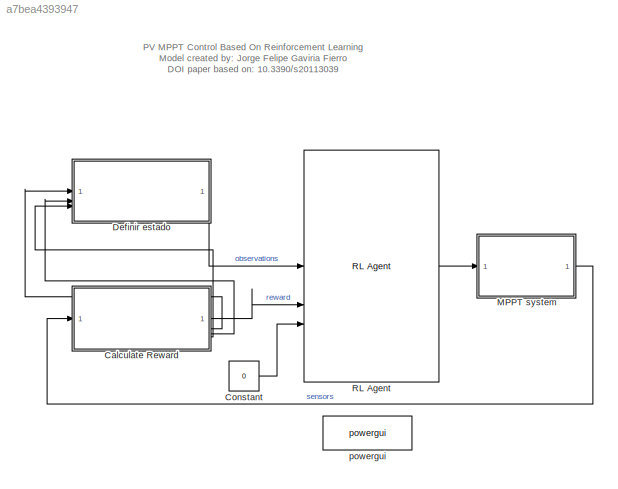
MODEL slx_a7bea4393947
KIND model
CONFIG AbsTol = auto
CONFIG EnableMultiTasking = off
CONFIG FixedStep = Ts
CONFIG MaxStep = auto
CONFIG MinStep = auto
CONFIG RelTol = 1e-4
CONFIG SampleTimeConstraint = Unconstrained
CONFIG SolverName = ode23tb
CONFIG StartTime = 0.0
CONFIG StopTime = 0.5
WORKSPACE source: mxarray member
WORKSPACE Ir1 = 200
WORKSPACE Ir2 = 1000
WORKSPACE Ir3 = 1000
WORKSPACE Sig: Simulink.Signal (value not decoded)
WORKSPACE T1 = 35
WORKSPACE initialDuty = 0.2
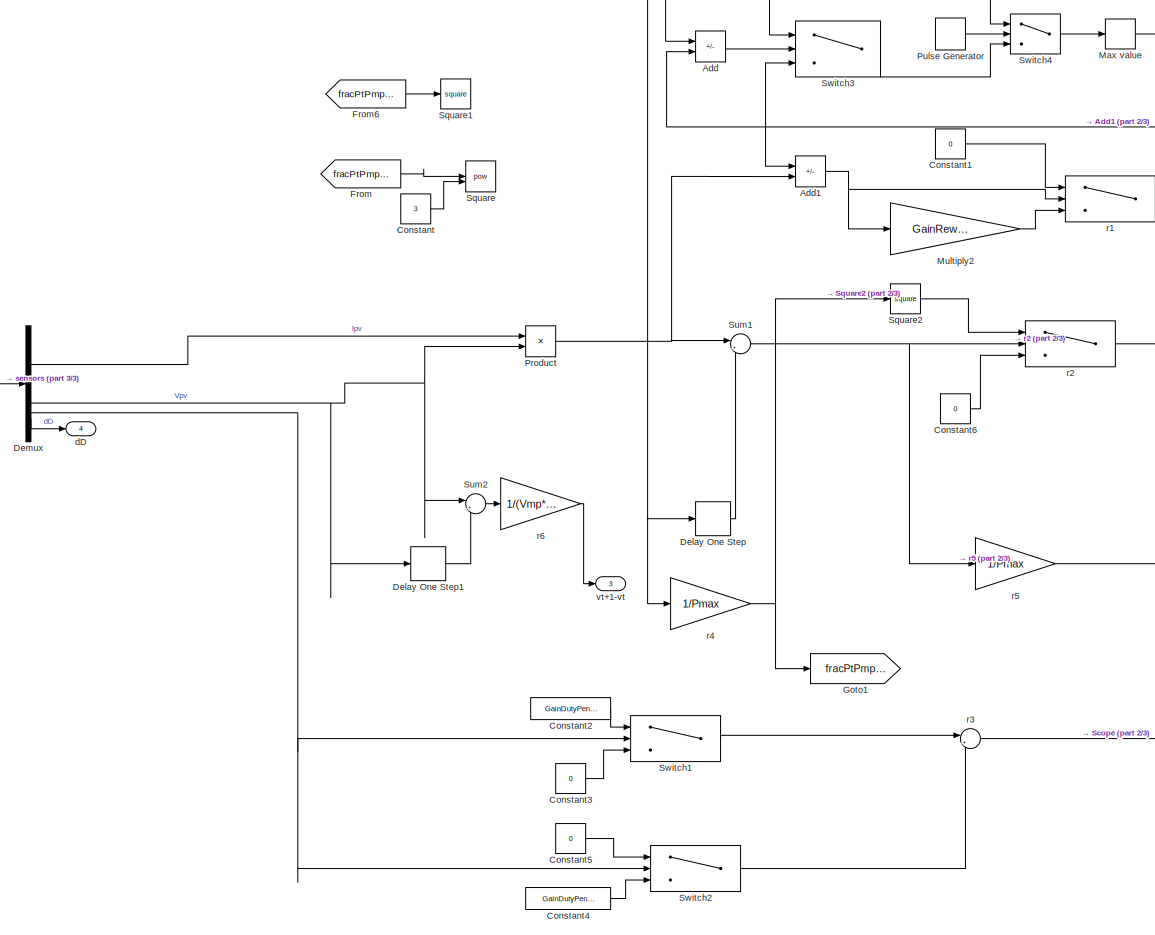
[diagram: Calculate Reward - part 1/3, center side, full height]
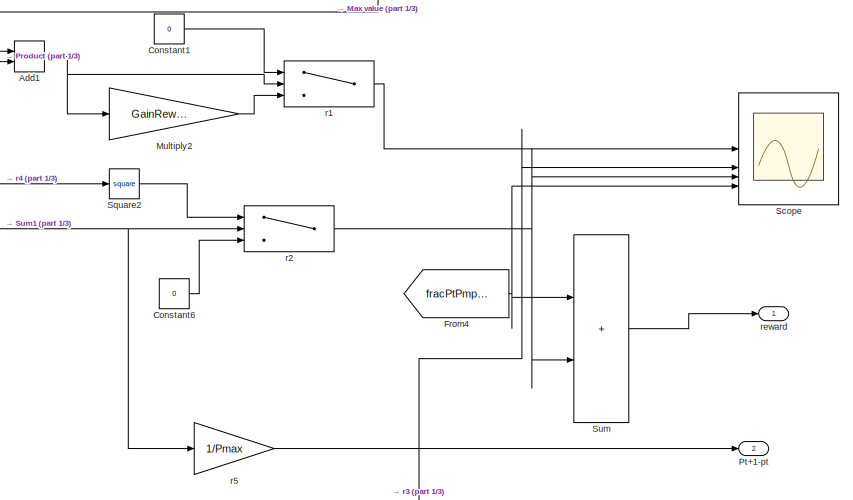
[diagram: Calculate Reward - part 2/3, middle right region]
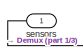
[diagram: Calculate Reward - part 3/3, middle left region]
BLOCK [SubSystem] Calculate Reward
BLOCK [Sum] Calculate Reward/Add
  Commented = on
  IconShape = rectangular
  Inputs = +-
BLOCK [Sum] Calculate Reward/Add1
  Commented = on
  IconShape = rectangular
  Inputs = -+
BLOCK [Constant] Calculate Reward/Constant
  Commented = on
  Value = 3
BLOCK [Constant] Calculate Reward/Constant1
  Commented = on
  Value = 0
BLOCK [Constant] Calculate Reward/Constant2
  Commented = on
  Value = GainDutyPenalty
BLOCK [Constant] Calculate Reward/Constant3
  Commented = on
  Value = 0
BLOCK [Constant] Calculate Reward/Constant4
  Commented = on
  Value = GainDutyPenalty
BLOCK [Constant] Calculate Reward/Constant5
  Commented = on
  Value = 0
BLOCK [Constant] Calculate Reward/Constant6
  Value = 0
BLOCK [Delay] Calculate Reward/Delay One Step
  DelayLength = 1
  InputPortMap = u0
  SampleTime = Ts
BLOCK [Delay] Calculate Reward/Delay One Step1
  DelayLength = 1
  InputPortMap = u0
  SampleTime = Ts
BLOCK [Demux] Calculate Reward/Demux
BLOCK [From] Calculate Reward/From
  Commented = on
  GotoTag = fracPtPmpptStc
BLOCK [From] Calculate Reward/From4
  GotoTag = fracPtPmpptStc
BLOCK [From] Calculate Reward/From6
  Commented = on
  GotoTag = fracPtPmpptStc
BLOCK [Goto] Calculate Reward/Goto1
  GotoTag = fracPtPmpptStc
BLOCK [Memory] Calculate Reward/Max value
  Commented = on
BLOCK [Gain] Calculate Reward/Multiply2
  Commented = on
  Gain = GainReward/Pmmtstc
BLOCK [Product] Calculate Reward/Product
BLOCK [Outport] Calculate Reward/Pt+1-pt
  Port = 2
BLOCK [DiscretePulseGenerator] Calculate Reward/Pulse Generator
  Amplitude = 0
  Commented = on
  Period = Tf
  PulseType = Time based
BLOCK [Scope] Calculate Reward/Scope
  Commented = on
  Floating = off
  NumInputPorts = 5
  ScopeSpecificationString = Simulink.scopes.TimeScopeBlockCfg('CurrentConfiguration', extmgr.ConfigurationSet(extmgr.Configuration('Core','General UI',true),extmgr.Configuration('Core','Source UI',true),extmgr.Configuration('Sources','WiredSimulink',true,'DataLoggingVariableName','ScopeData2'),extmgr.Configuration('Visuals','Time Domain',true,'SerializedDisplays',{struct('MinYLimReal','-0.96513','MaxYLimReal','0.33124','YLab...<+1580ch>
BLOCK [Math] Calculate Reward/Square
  Commented = on
  Operator = pow
  OutputSignalType = real
BLOCK [Math] Calculate Reward/Square1
  Commented = on
  Operator = square
BLOCK [Math] Calculate Reward/Square2
  Operator = square
BLOCK [Sum] Calculate Reward/Sum
  IconShape = rectangular
  Inputs = |++
BLOCK [Sum] Calculate Reward/Sum1
  Inputs = |+-
BLOCK [Sum] Calculate Reward/Sum2
  Inputs = |+-
BLOCK [Switch] Calculate Reward/Switch1
  Commented = on
  InputSameDT = off
  SaturateOnIntegerOverflow = off
  Threshold = MAX_DUTTY
BLOCK [Switch] Calculate Reward/Switch2
  Commented = on
  InputSameDT = off
  SaturateOnIntegerOverflow = off
  Threshold = MIN_DUTTY
BLOCK [Switch] Calculate Reward/Switch3
  Commented = on
  InputSameDT = off
  SaturateOnIntegerOverflow = off
  Threshold = 3
BLOCK [Switch] Calculate Reward/Switch4
  Commented = on
  InputSameDT = off
  SaturateOnIntegerOverflow = off
  Threshold = 1
BLOCK [Outport] Calculate Reward/dD
  Port = 4
BLOCK [Switch] Calculate Reward/r1
  Commented = on
  InputSameDT = off
  SaturateOnIntegerOverflow = off
  Threshold = -5
BLOCK [Switch] Calculate Reward/r2
  InputSameDT = off
  SaturateOnIntegerOverflow = off
  Threshold = -1
BLOCK [Sum] Calculate Reward/r3
  Commented = on
  Inputs = |++
BLOCK [Gain] Calculate Reward/r4
  Gain = 1/Pmax
BLOCK [Gain] Calculate Reward/r5
  Gain = 1/Pmax
BLOCK [Gain] Calculate Reward/r6
  Gain = 1/(Vmp*N_panels)
BLOCK [Outport] Calculate Reward/reward
BLOCK [Inport] Calculate Reward/sensors
BLOCK [Outport] Calculate Reward/vt+1-vt
  Port = 3
BLOCK [Constant] Constant
  Value = 0
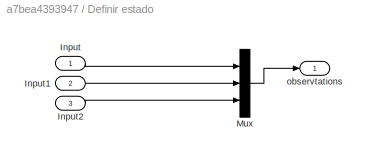
BLOCK [SubSystem] Definir estado
BLOCK [Inport] Definir estado/Input
BLOCK [Inport] Definir estado/Input1
  Port = 2
BLOCK [Inport] Definir estado/Input2
  Port = 3
BLOCK [Mux] Definir estado/Mux
  DisplayOption = bar
  Inputs = 3
BLOCK [Outport] Definir estado/observtations
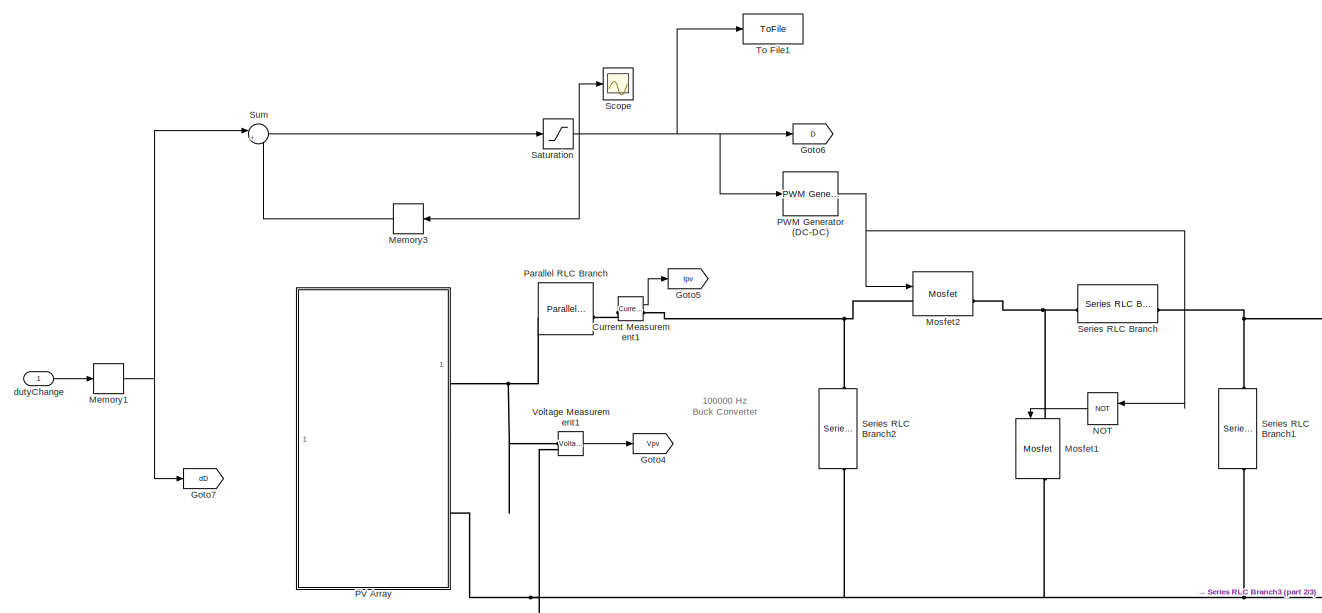
[diagram: MPPT system - part 1/3, central region]
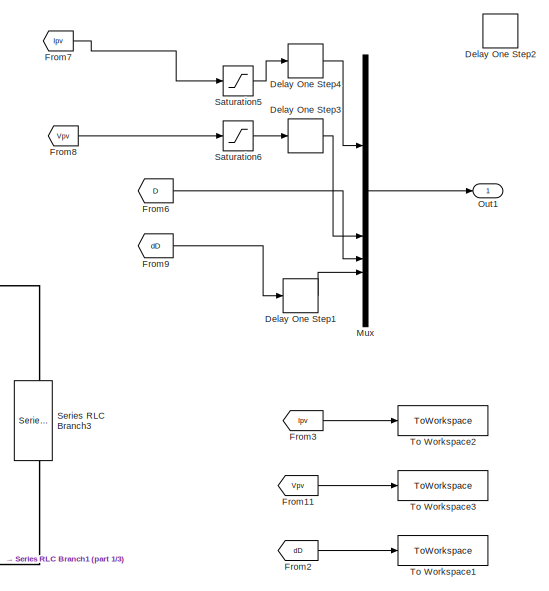
[diagram: MPPT system - part 2/3, middle right region]
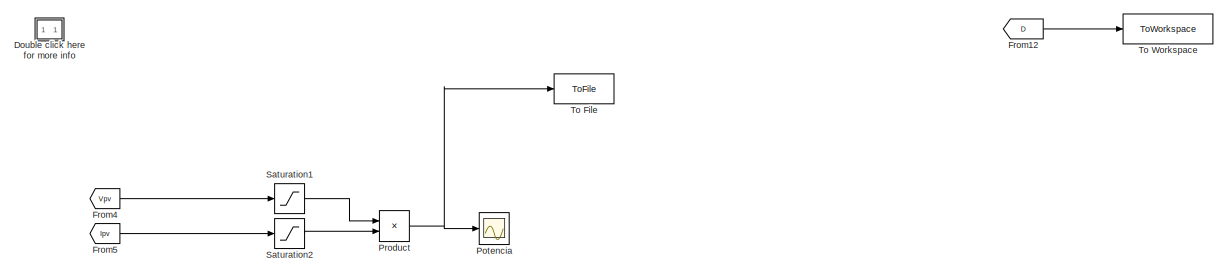
[diagram: MPPT system - part 3/3, bottom center region]
BLOCK [SubSystem] MPPT system
BLOCK [Reference] MPPT system/Current Measurement1  REF=spsCurrentMeasurementLib/Current Measurement
  SourceBlock = spsCurrentMeasurementLib/Current Measurement
  SourceType = Current Measurement
  UserDataPersistent = on
BLOCK [Delay] MPPT system/Delay One Step1
  DelayLength = 0
  InputPortMap = u0
  SampleTime = Ts
BLOCK [Delay] MPPT system/Delay One Step2
  Commented = on
  DelayLength = 0
  InputPortMap = u0
  SampleTime = Ts
BLOCK [Delay] MPPT system/Delay One Step3
  DelayLength = 0
  InputPortMap = u0
  SampleTime = Ts
BLOCK [Delay] MPPT system/Delay One Step4
  DelayLength = 0
  InputPortMap = u0
  SampleTime = Ts
BLOCK [SubSystem] MPPT system/Double click here for more info
  OpenFcn = showdemo(bdroot(gcb))
BLOCK [From] MPPT system/From11
  Commented = on
  GotoTag = Vpv
BLOCK [From] MPPT system/From12
  Commented = on
  GotoTag = D
BLOCK [From] MPPT system/From2
  Commented = on
  GotoTag = dD
BLOCK [From] MPPT system/From3
  Commented = on
  GotoTag = Ipv
BLOCK [From] MPPT system/From4
  GotoTag = Vpv
BLOCK [From] MPPT system/From5
  GotoTag = Ipv
BLOCK [From] MPPT system/From6
  GotoTag = D
BLOCK [From] MPPT system/From7
  GotoTag = Ipv
BLOCK [From] MPPT system/From8
  GotoTag = Vpv
BLOCK [From] MPPT system/From9
  GotoTag = dD
BLOCK [Goto] MPPT system/Goto4
  GotoTag = Vpv
BLOCK [Goto] MPPT system/Goto5
  GotoTag = Ipv
BLOCK [Goto] MPPT system/Goto6
  GotoTag = D
BLOCK [Goto] MPPT system/Goto7
  GotoTag = dD
BLOCK [Memory] MPPT system/Memory1
  InheritSampleTime = on
BLOCK [Memory] MPPT system/Memory3
  InheritSampleTime = on
  InitialCondition = initialDuty
  NameLocation = top
BLOCK [Reference] MPPT system/Mosfet1  REF=spsMosfetLib/Mosfet
  NameLocation = left
  SourceBlock = spsMosfetLib/Mosfet
  SourceType = Mosfet
BLOCK [Reference] MPPT system/Mosfet2  REF=spsMosfetLib/Mosfet
  SourceBlock = spsMosfetLib/Mosfet
  SourceType = Mosfet
BLOCK [Mux] MPPT system/Mux
  DisplayOption = bar
BLOCK [Logic] MPPT system/NOT
  AllPortsSameDT = off
  IconShape = distinctive
  NameLocation = top
  Operator = NOT
  OutDataTypeStr = boolean
BLOCK [Outport] MPPT system/Out1
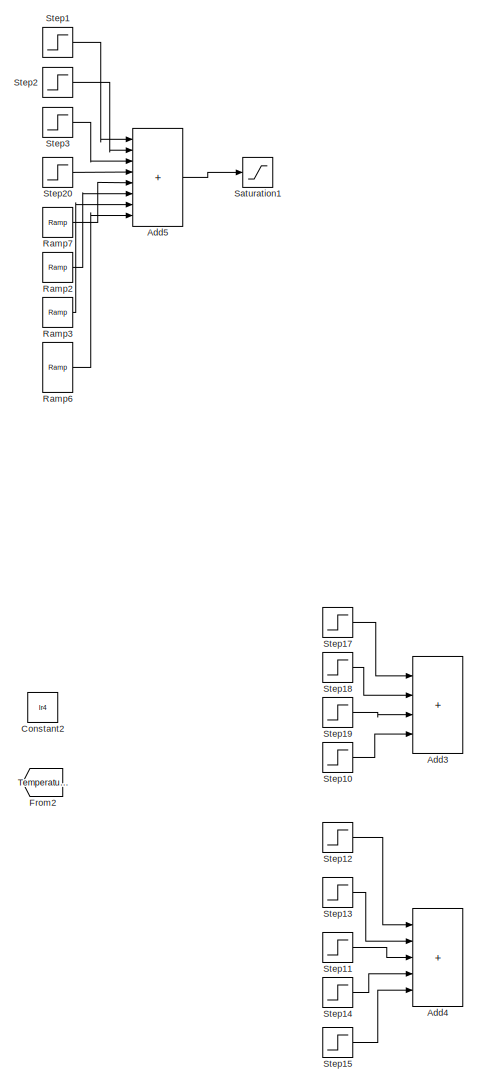
[diagram: MPPT system/PV Array - part 1/2, left side, full height]
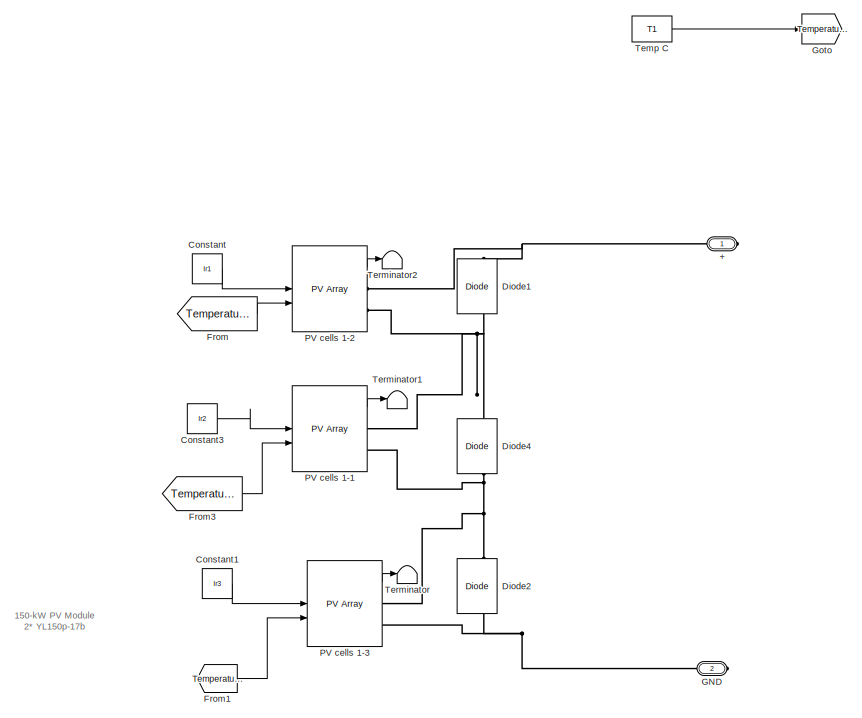
[diagram: MPPT system/PV Array - part 2/2, middle right region]
BLOCK [SubSystem] MPPT system/PV Array
BLOCK [PMIOPort] MPPT system/PV Array/+
  Side = Right
BLOCK [Sum] MPPT system/PV Array/Add3
  Commented = on
  IconShape = rectangular
  Inputs = ++++
BLOCK [Sum] MPPT system/PV Array/Add4
  Commented = on
  IconShape = rectangular
  Inputs = +++++
BLOCK [Sum] MPPT system/PV Array/Add5
  Commented = on
  IconShape = rectangular
  Inputs = ++++++++
BLOCK [Constant] MPPT system/PV Array/Constant
  Value = Ir1
BLOCK [Constant] MPPT system/PV Array/Constant1
  Value = Ir3
BLOCK [Constant] MPPT system/PV Array/Constant2
  Commented = on
  Value = Ir4
BLOCK [Constant] MPPT system/PV Array/Constant3
  Value = Ir2
BLOCK [Reference] MPPT system/PV Array/Diode1  REF=spsDiodeLib/Diode
  NameLocation = right
  SourceBlock = spsDiodeLib/Diode
  SourceType = Diode
BLOCK [Reference] MPPT system/PV Array/Diode2  REF=spsDiodeLib/Diode
  NameLocation = right
  SourceBlock = spsDiodeLib/Diode
  SourceType = Diode
BLOCK [Reference] MPPT system/PV Array/Diode4  REF=spsDiodeLib/Diode
  NameLocation = right
  SourceBlock = spsDiodeLib/Diode
  SourceType = Diode
BLOCK [From] MPPT system/PV Array/From
  GotoTag = Temperature
BLOCK [From] MPPT system/PV Array/From1
  GotoTag = Temperature
BLOCK [From] MPPT system/PV Array/From2
  Commented = on
  GotoTag = Temperature
BLOCK [From] MPPT system/PV Array/From3
  GotoTag = Temperature
BLOCK [PMIOPort] MPPT system/PV Array/GND
  NameLocation = top
  Port = 2
  Side = Right
BLOCK [Goto] MPPT system/PV Array/Goto
  GotoTag = Temperature
BLOCK [Reference] MPPT system/PV Array/PV cells 1-1  REF=spsPVArrayLib/PV Array
  SourceBlock = spsPVArrayLib/PV Array
  SourceType = PV array
BLOCK [Reference] MPPT system/PV Array/PV cells 1-2  REF=spsPVArrayLib/PV Array
  SourceBlock = spsPVArrayLib/PV Array
  SourceType = PV array
BLOCK [Reference] MPPT system/PV Array/PV cells 1-3  REF=spsPVArrayLib/PV Array
  SourceBlock = spsPVArrayLib/PV Array
  SourceType = PV array
BLOCK [Reference] MPPT system/PV Array/Ramp2  REF=simulink/Sources/Ramp
  Commented = on
  SourceBlock = simulink/Sources/Ramp
  SourceType = Ramp
BLOCK [Reference] MPPT system/PV Array/Ramp3  REF=simulink/Sources/Ramp
  Commented = on
  SourceBlock = simulink/Sources/Ramp
  SourceType = Ramp
BLOCK [Reference] MPPT system/PV Array/Ramp6  REF=simulink/Sources/Ramp
  Commented = on
  SourceBlock = simulink/Sources/Ramp
  SourceType = Ramp
BLOCK [Reference] MPPT system/PV Array/Ramp7  REF=simulink/Sources/Ramp
  Commented = on
  SourceBlock = simulink/Sources/Ramp
  SourceType = Ramp
BLOCK [Saturate] MPPT system/PV Array/Saturation1
  Commented = on
  LowerLimit = 0
  UpperLimit = 1000
BLOCK [Step] MPPT system/PV Array/Step1
  After = 1000
  Commented = on
  SampleTime = 0
  Time = 0
BLOCK [Step] MPPT system/PV Array/Step10
  After = 250
  Commented = on
  SampleTime = 0
  Time = 2
BLOCK [Step] MPPT system/PV Array/Step11
  After = 100
  Commented = on
  SampleTime = 0
  Time = 2
BLOCK [Step] MPPT system/PV Array/Step12
  After = 1000
  Commented = on
  SampleTime = 0
  Time = 0
BLOCK [Step] MPPT system/PV Array/Step13
  After = -800
  Commented = on
  SampleTime = 0
  Time = 0.5
BLOCK [Step] MPPT system/PV Array/Step14
  After = -100
  Commented = on
  SampleTime = 0
  Time = 1.5
BLOCK [Step] MPPT system/PV Array/Step15
  After = 200
  Commented = on
  SampleTime = 0
  Time = 1.5
BLOCK [Step] MPPT system/PV Array/Step17
  After = 1000
  Commented = on
  SampleTime = 0
  Time = 0
BLOCK [Step] MPPT system/PV Array/Step18
  After = -700
  Commented = on
  SampleTime = 0
BLOCK [Step] MPPT system/PV Array/Step19
  After = -400
  Commented = on
  SampleTime = 0
  Time = 1.5
BLOCK [Step] MPPT system/PV Array/Step2
  After = -100
  Commented = on
  SampleTime = 0
BLOCK [Step] MPPT system/PV Array/Step20
  After = -300
  Commented = on
  SampleTime = 0
  Time = 2
BLOCK [Step] MPPT system/PV Array/Step3
  After = -100
  Commented = on
  SampleTime = 0
  Time = 1.5
BLOCK [Constant] MPPT system/PV Array/Temp C
  Value = T1
BLOCK [Terminator] MPPT system/PV Array/Terminator
BLOCK [Terminator] MPPT system/PV Array/Terminator1
BLOCK [Terminator] MPPT system/PV Array/Terminator2
BLOCK [Reference] MPPT system/PWM Generator (DC-DC)  REF=spsPWMGeneratorDCDCLib/PWM Generator
(DC-DC)
  SourceBlock = spsPWMGeneratorDCDCLib/PWM Generator\n(DC-DC)
  SourceType = PWM Generator (DC-DC)
BLOCK [Reference] MPPT system/Parallel RLC Branch  REF=spsParallelRLCBranchLib/Parallel RLC Branch
  AttributesFormatString = \n
  SourceBlock = spsParallelRLCBranchLib/Parallel RLC Branch
  SourceType = Parallel RLC Branch
BLOCK [Scope] MPPT system/Potencia
  Floating = off
  NumInputPorts = 1
  ScopeSpecificationString = Simulink.scopes.TimeScopeBlockCfg('CurrentConfiguration', extmgr.ConfigurationSet(extmgr.Configuration('Core','General UI',true),extmgr.Configuration('Core','Source UI',true),extmgr.Configuration('Sources','WiredSimulink',true,'DataLoggingVariableName','ScopeData2'),extmgr.Configuration('Visuals','Time Domain',true,'SerializedDisplays',{struct('MinYLimReal','-17.49558','MaxYLimReal','278.81514','Y...<+1782ch>
BLOCK [Product] MPPT system/Product
BLOCK [Saturate] MPPT system/Saturation
  LowerLimit = MIN_DUTTY
  UpperLimit = MAX_DUTTY
BLOCK [Saturate] MPPT system/Saturation1
  LowerLimit = 0
  UpperLimit = 1000000000000
BLOCK [Saturate] MPPT system/Saturation2
  LowerLimit = 0
  UpperLimit = 1000000000000
BLOCK [Saturate] MPPT system/Saturation5
  LowerLimit = 0
  UpperLimit = 1000000000000
BLOCK [Saturate] MPPT system/Saturation6
  LowerLimit = 0
  UpperLimit = 10000000000000000
BLOCK [Scope] MPPT system/Scope
  Commented = on
  Floating = off
  NumInputPorts = 1
  ScopeSpecificationString = Simulink.scopes.TimeScopeBlockCfg('CurrentConfiguration', extmgr.ConfigurationSet(extmgr.Configuration('Core','General UI',true),extmgr.Configuration('Core','Source UI',true),extmgr.Configuration('Sources','WiredSimulink',true,'DataLoggingVariableName','ScopeData1'),extmgr.Configuration('Visuals','Time Domain',true,'SerializedDisplays',{struct('MinYLimReal','0.2375','MaxYLimReal','0.8625','YLabelR...<+1359ch>
BLOCK [Reference] MPPT system/Series RLC Branch  REF=spsSeriesRLCBranchLib/Series RLC Branch
  SourceBlock = spsSeriesRLCBranchLib/Series RLC Branch
  SourceType = Series RLC Branch
BLOCK [Reference] MPPT system/Series RLC Branch1  REF=spsSeriesRLCBranchLib/Series RLC Branch
  NameLocation = left
  SourceBlock = spsSeriesRLCBranchLib/Series RLC Branch
  SourceType = Series RLC Branch
BLOCK [Reference] MPPT system/Series RLC Branch2  REF=spsSeriesRLCBranchLib/Series RLC Branch
  NameLocation = left
  SourceBlock = spsSeriesRLCBranchLib/Series RLC Branch
  SourceType = Series RLC Branch
BLOCK [Reference] MPPT system/Series RLC Branch3  REF=spsSeriesRLCBranchLib/Series RLC Branch
  NameLocation = left
  SourceBlock = spsSeriesRLCBranchLib/Series RLC Branch
  SourceType = Series RLC Branch
BLOCK [Sum] MPPT system/Sum
  Inputs = |++
BLOCK [ToFile] MPPT system/To File
  Filename = DQN.mat
  SaveFormat = Timeseries
BLOCK [ToFile] MPPT system/To File1
  Filename = DC.mat
  SampleTime = Ts
  SaveFormat = Timeseries
BLOCK [ToWorkspace] MPPT system/To Workspace
  Commented = on
  FixptAsFi = on
  MaxDataPoints = inf
  SampleTime = 0.01
  Save2DSignal = 2-D array (concatenate along first dimension)
  VariableName = Dutty
BLOCK [ToWorkspace] MPPT system/To Workspace1
  Commented = on
  FixptAsFi = on
  MaxDataPoints = inf
  SampleTime = 0.01
  Save2DSignal = 2-D array (concatenate along first dimension)
  VariableName = dDutty
BLOCK [ToWorkspace] MPPT system/To Workspace2
  Commented = on
  FixptAsFi = on
  MaxDataPoints = inf
  SampleTime = 0.01
  Save2DSignal = 2-D array (concatenate along first dimension)
  VariableName = Ipv
BLOCK [ToWorkspace] MPPT system/To Workspace3
  Commented = on
  FixptAsFi = on
  MaxDataPoints = inf
  SampleTime = 0.01
  Save2DSignal = 2-D array (concatenate along first dimension)
  VariableName = Vpv
BLOCK [Reference] MPPT system/Voltage Measurement1  REF=spsVoltageMeasurementLib/Voltage Measurement
  SourceBlock = spsVoltageMeasurementLib/Voltage Measurement
  SourceType = Voltage Measurement
  UserDataPersistent = on
BLOCK [Inport] MPPT system/dutyChange
BLOCK [Reference] RL Agent  REF=rllib/RL Agent
  SourceBlock = rllib/RL Agent
  SourceType = RL Agent
BLOCK [Reference] powergui  REF=spspowerguiLib/powergui
  Priority = 1
  SourceBlock = spspowerguiLib/powergui
  SourceType = PSB option menu block
ANNOTATION (root): PV MPPT Control Based On Reinforcement Learning Model created by: Jorge Felipe Gaviria Fierro DOI paper based on: 10.3390/s20113039
ANNOTATION MPPT system: 100000 Hz Buck Converter
ANNOTATION MPPT system/PV Array: 150-kW PV Module 2* YL150p-17b
NET Calculate Reward/Add1:1 -> Calculate Reward/Multiply2:1, Calculate Reward/r1:2
LINE Calculate Reward/Add:1 -> Calculate Reward/Switch3:2
LINE Calculate Reward/Constant1:1 -> Calculate Reward/r1:1
LINE Calculate Reward/Constant2:1 -> Calculate Reward/Switch1:1
LINE Calculate Reward/Constant3:1 -> Calculate Reward/Switch1:3
LINE Calculate Reward/Constant4:1 -> Calculate Reward/Switch2:3
LINE Calculate Reward/Constant5:1 -> Calculate Reward/Switch2:1
LINE Calculate Reward/Constant6:1 -> Calculate Reward/r2:3
LINE Calculate Reward/Constant:1 -> Calculate Reward/Square:2
LINE Calculate Reward/Delay One Step1:1 -> Calculate Reward/Sum2:2
LINE Calculate Reward/Delay One Step:1 -> Calculate Reward/Sum1:2
LINE Calculate Reward/Demux:1 -> Calculate Reward/Product:1
NET Calculate Reward/Demux:2 -> Calculate Reward/Delay One Step1:1, Calculate Reward/Product:2, Calculate Reward/Sum2:1
NET Calculate Reward/Demux:3 -> Calculate Reward/Switch1:2, Calculate Reward/Switch2:2
LINE Calculate Reward/Demux:4 -> Calculate Reward/dD:1
NET Calculate Reward/From4:1 -> Calculate Reward/Scope:5, Calculate Reward/Sum:1
LINE Calculate Reward/From6:1 -> Calculate Reward/Square1:1
LINE Calculate Reward/From:1 -> Calculate Reward/Square:1
NET Calculate Reward/Max value:1 -> Calculate Reward/Add1:1, Calculate Reward/Add:2, Calculate Reward/Switch3:3
LINE Calculate Reward/Multiply2:1 -> Calculate Reward/r1:3
NET Calculate Reward/Product:1 -> Calculate Reward/Add1:2, Calculate Reward/Add:1, Calculate Reward/Delay One Step:1, Calculate Reward/Sum1:1, Calculate Reward/Switch3:1, Calculate Reward/Switch4:1, Calculate Reward/r4:1
LINE Calculate Reward/Pulse Generator:1 -> Calculate Reward/Switch4:2
LINE Calculate Reward/Square2:1 -> Calculate Reward/r2:1
NET Calculate Reward/Sum1:1 -> Calculate Reward/r2:2, Calculate Reward/r5:1
LINE Calculate Reward/Sum2:1 -> Calculate Reward/r6:1
LINE Calculate Reward/Sum:1 -> Calculate Reward/reward:1
LINE Calculate Reward/Switch1:1 -> Calculate Reward/r3:1
LINE Calculate Reward/Switch2:1 -> Calculate Reward/r3:2
LINE Calculate Reward/Switch3:1 -> Calculate Reward/Switch4:3
LINE Calculate Reward/Switch4:1 -> Calculate Reward/Max value:1
LINE Calculate Reward/r1:1 -> Calculate Reward/Scope:1
NET Calculate Reward/r2:1 -> Calculate Reward/Scope:3, Calculate Reward/Sum:2
LINE Calculate Reward/r3:1 -> Calculate Reward/Scope:2
NET Calculate Reward/r4:1 -> Calculate Reward/Goto1:1, Calculate Reward/Square2:1
LINE Calculate Reward/r5:1 -> Calculate Reward/Pt+1-pt:1
LINE Calculate Reward/r6:1 -> Calculate Reward/vt+1-vt:1
LINE Calculate Reward/sensors:1 -> Calculate Reward/Demux:1
LINE Calculate Reward:1 -> RL Agent:2
LINE Calculate Reward:2 -> Definir estado:1
LINE Calculate Reward:3 -> Definir estado:2
LINE Calculate Reward:4 -> Definir estado:3
LINE Constant:1 -> RL Agent:3
LINE Definir estado/Input1:1 -> Definir estado/Mux:2
LINE Definir estado/Input2:1 -> Definir estado/Mux:3
LINE Definir estado/Input:1 -> Definir estado/Mux:1
LINE Definir estado/Mux:1 -> Definir estado/observtations:1
LINE Definir estado:1 -> RL Agent:1
LINE MPPT system/Current Measurement1:1 -> MPPT system/Goto5:1
LINE MPPT system/Delay One Step1:1 -> MPPT system/Mux:4
LINE MPPT system/Delay One Step3:1 -> MPPT system/Mux:2
LINE MPPT system/Delay One Step4:1 -> MPPT system/Mux:1
LINE MPPT system/From11:1 -> MPPT system/To Workspace3:1
LINE MPPT system/From12:1 -> MPPT system/To Workspace:1
LINE MPPT system/From2:1 -> MPPT system/To Workspace1:1
LINE MPPT system/From3:1 -> MPPT system/To Workspace2:1
LINE MPPT system/From4:1 -> MPPT system/Saturation1:1
LINE MPPT system/From5:1 -> MPPT system/Saturation2:1
LINE MPPT system/From6:1 -> MPPT system/Mux:3
LINE MPPT system/From7:1 -> MPPT system/Saturation5:1
LINE MPPT system/From8:1 -> MPPT system/Saturation6:1
LINE MPPT system/From9:1 -> MPPT system/Delay One Step1:1
NET MPPT system/Memory1:1 -> MPPT system/Goto7:1, MPPT system/Sum:1
LINE MPPT system/Memory3:1 -> MPPT system/Sum:2
LINE MPPT system/Mux:1 -> MPPT system/Out1:1
LINE MPPT system/NOT:1 -> MPPT system/Mosfet1:1
LINE MPPT system/PV Array/Add5:1 -> MPPT system/PV Array/Saturation1:1
LINE MPPT system/PV Array/Constant1:1 -> MPPT system/PV Array/PV cells 1-3:1
LINE MPPT system/PV Array/Constant3:1 -> MPPT system/PV Array/PV cells 1-1:1
LINE MPPT system/PV Array/Constant:1 -> MPPT system/PV Array/PV cells 1-2:1
LINE MPPT system/PV Array/From1:1 -> MPPT system/PV Array/PV cells 1-3:2
LINE MPPT system/PV Array/From3:1 -> MPPT system/PV Array/PV cells 1-1:2
LINE MPPT system/PV Array/From:1 -> MPPT system/PV Array/PV cells 1-2:2
LINE MPPT system/PV Array/PV cells 1-1:1 -> MPPT system/PV Array/Terminator1:1
LINE MPPT system/PV Array/PV cells 1-2:1 -> MPPT system/PV Array/Terminator2:1
LINE MPPT system/PV Array/PV cells 1-3:1 -> MPPT system/PV Array/Terminator:1
LINE MPPT system/PV Array/Ramp2:1 -> MPPT system/PV Array/Add5:6
LINE MPPT system/PV Array/Ramp3:1 -> MPPT system/PV Array/Add5:7
LINE MPPT system/PV Array/Ramp6:1 -> MPPT system/PV Array/Add5:8
LINE MPPT system/PV Array/Ramp7:1 -> MPPT system/PV Array/Add5:5
LINE MPPT system/PV Array/Step10:1 -> MPPT system/PV Array/Add3:4
LINE MPPT system/PV Array/Step11:1 -> MPPT system/PV Array/Add4:3
LINE MPPT system/PV Array/Step12:1 -> MPPT system/PV Array/Add4:1
LINE MPPT system/PV Array/Step13:1 -> MPPT system/PV Array/Add4:2
LINE MPPT system/PV Array/Step14:1 -> MPPT system/PV Array/Add4:4
LINE MPPT system/PV Array/Step15:1 -> MPPT system/PV Array/Add4:5
LINE MPPT system/PV Array/Step17:1 -> MPPT system/PV Array/Add3:1
LINE MPPT system/PV Array/Step18:1 -> MPPT system/PV Array/Add3:2
LINE MPPT system/PV Array/Step19:1 -> MPPT system/PV Array/Add3:3
LINE MPPT system/PV Array/Step1:1 -> MPPT system/PV Array/Add5:1
LINE MPPT system/PV Array/Step20:1 -> MPPT system/PV Array/Add5:4
LINE MPPT system/PV Array/Step2:1 -> MPPT system/PV Array/Add5:2
LINE MPPT system/PV Array/Step3:1 -> MPPT system/PV Array/Add5:3
LINE MPPT system/PV Array/Temp C:1 -> MPPT system/PV Array/Goto:1
NET MPPT system/PWM Generator (DC-DC):1 -> MPPT system/Mosfet2:1, MPPT system/NOT:1
NET MPPT system/Product:1 -> MPPT system/Potencia:1, MPPT system/To File:1
LINE MPPT system/Saturation1:1 -> MPPT system/Product:1
LINE MPPT system/Saturation2:1 -> MPPT system/Product:2
LINE MPPT system/Saturation5:1 -> MPPT system/Delay One Step4:1
LINE MPPT system/Saturation6:1 -> MPPT system/Delay One Step3:1
NET MPPT system/Saturation:1 -> MPPT system/Goto6:1, MPPT system/Memory3:1, MPPT system/PWM Generator (DC-DC):1, MPPT system/Scope:1, MPPT system/To File1:1
LINE MPPT system/Sum:1 -> MPPT system/Saturation:1
LINE MPPT system/Voltage Measurement1:1 -> MPPT system/Goto4:1
LINE MPPT system/dutyChange:1 -> MPPT system/Memory1:1
LINE MPPT system:1 -> Calculate Reward:1
LINE RL Agent:1 -> MPPT system:1
PLINE MPPT system/Current Measurement1:LConn1 -- MPPT system/Parallel RLC Branch:RConn1
PNET net1: MPPT system/Current Measurement1:RConn1 -- MPPT system/Mosfet2:LConn1 -- MPPT system/Series RLC Branch2:LConn1
PNET net2: MPPT system/Mosfet1:LConn1 -- MPPT system/Mosfet2:RConn1 -- MPPT system/Series RLC Branch:LConn1
PNET net3: MPPT system/Mosfet1:RConn1 -- MPPT system/PV Array:RConn2 -- MPPT system/Series RLC Branch1:RConn1 -- MPPT system/Series RLC Branch2:RConn1 -- MPPT system/Series RLC Branch3:RConn1 -- MPPT system/Voltage Measurement1:LConn2
PNET net4: MPPT system/PV Array/+:RConn1 -- MPPT system/PV Array/Diode1:RConn1 -- MPPT system/PV Array/PV cells 1-2:RConn1
PNET net5: MPPT system/PV Array/Diode1:LConn1 -- MPPT system/PV Array/Diode4:RConn1 -- MPPT system/PV Array/PV cells 1-1:RConn1 -- MPPT system/PV Array/PV cells 1-2:RConn2
PNET net6: MPPT system/PV Array/Diode2:LConn1 -- MPPT system/PV Array/GND:RConn1 -- MPPT system/PV Array/PV cells 1-3:RConn2
PNET net7: MPPT system/PV Array/Diode2:RConn1 -- MPPT system/PV Array/Diode4:LConn1 -- MPPT system/PV Array/PV cells 1-1:RConn2 -- MPPT system/PV Array/PV cells 1-3:RConn1
PNET net8: MPPT system/PV Array:RConn1 -- MPPT system/Parallel RLC Branch:LConn1 -- MPPT system/Voltage Measurement1:LConn1
PNET net9: MPPT system/Series RLC Branch1:LConn1 -- MPPT system/Series RLC Branch3:LConn1 -- MPPT system/Series RLC Branch:RConn1
note: NET lines group one-source signal fan-out (src -> all destinations, sorted); 1:1 wires keep LINE; PNET lines group multi-terminal physical nets as a canonical sorted terminal list (undirected conserving connections); 2-terminal nets keep the pairwise PLINE form
